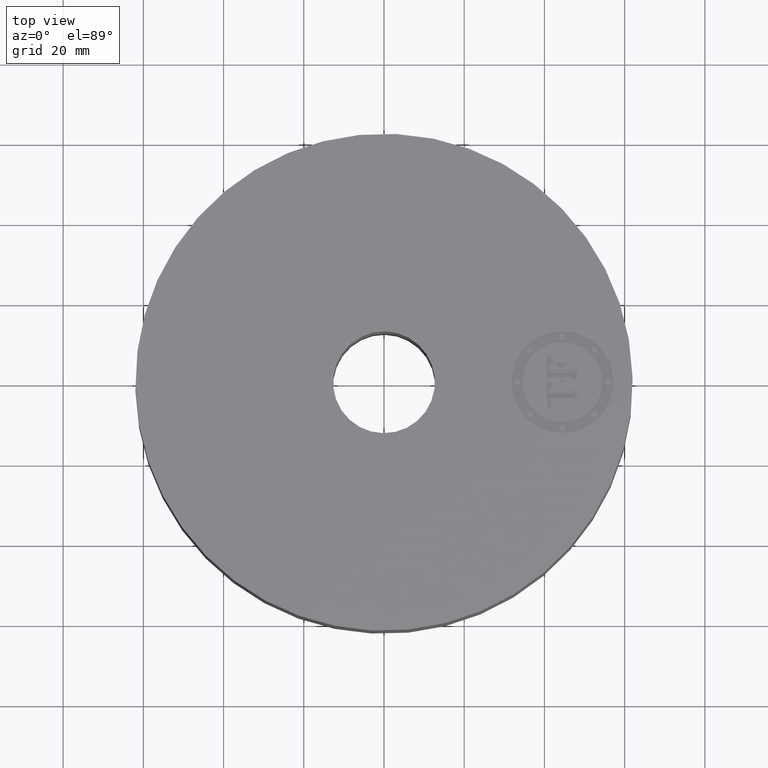
[diagram: clean part render]
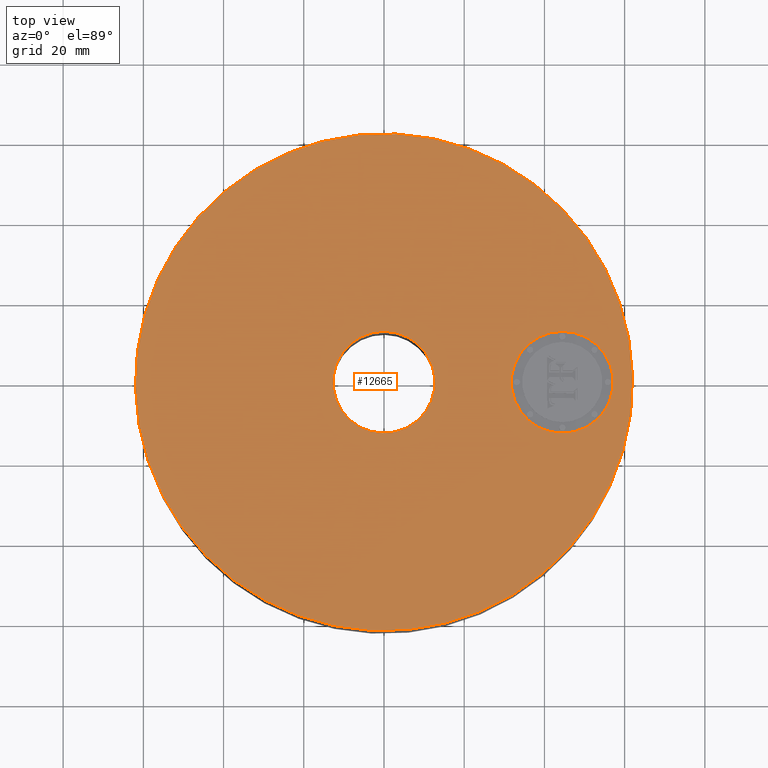
[diagram: same view with one face highlighted and labeled with its STEP entity id]
A machine part, top view. The second image highlights one B-rep face of the part: STEP entity #12665.
In plain terms, the highlighted planar face has unit normal (0, 0, -1).
Its self-contained STEP definition (entity closure, byte-faithful):
#3245=AXIS2_PLACEMENT_3D('Circle Axis2P3D',#3243,#3244,$) ;
#3264=AXIS2_PLACEMENT_3D('Circle Axis2P3D',#3262,#3263,$) ;
#3736=AXIS2_PLACEMENT_3D('Circle Axis2P3D',#3734,#3735,$) ;
#3762=AXIS2_PLACEMENT_3D('Circle Axis2P3D',#3760,#3761,$) ;
#12637=AXIS2_PLACEMENT_3D('Plane Axis2P3D',#12634,#12635,#12636) ;
#12649=AXIS2_PLACEMENT_3D('Circle Axis2P3D',#12647,#12648,$) ;
#12658=AXIS2_PLACEMENT_3D('Circle Axis2P3D',#12656,#12657,$) ;
#3240=CARTESIAN_POINT('Vertex',(-1.1697983142,-2.14130145102,1.75000000001)) ;
#3243=CARTESIAN_POINT('Axis2P3D Location',(0.,0.,1.75000000001)) ;
#3247=CARTESIAN_POINT('Vertex',(1.1697983142,2.14130145102,1.75000000001)) ;
#3262=CARTESIAN_POINT('Axis2P3D Location',(0.,0.,1.75000000001)) ;
#3734=CARTESIAN_POINT('Axis2P3D Location',(0.,0.,1.75000000001)) ;
#3738=CARTESIAN_POINT('Vertex',(0.239712769303,0.438791280947,1.75000000001)) ;
#3740=CARTESIAN_POINT('Vertex',(-0.239712769303,-0.438791280947,1.75000000001)) ;
#3760=CARTESIAN_POINT('Axis2P3D Location',(0.,0.,1.75000000001)) ;
#12634=CARTESIAN_POINT('Axis2P3D Location',(0.,0.500000000002,1.75000000001)) ;
#12647=CARTESIAN_POINT('Axis2P3D Location',(1.75000000001,0.,1.75000000001)) ;
#12651=CARTESIAN_POINT('Vertex',(1.75000000001,-0.499999995002,1.75000000001)) ;
#12653=CARTESIAN_POINT('Vertex',(1.75000000001,0.499999995002,1.75000000001)) ;
#12656=CARTESIAN_POINT('Axis2P3D Location',(1.75000000001,0.,1.75000000001)) ;
#3244=DIRECTION('Axis2P3D Direction',(0.,0.,-0.0393700787402)) ;
#3263=DIRECTION('Axis2P3D Direction',(0.,0.,-0.0393700787402)) ;
#3735=DIRECTION('Axis2P3D Direction',(0.,0.,-0.0393700787402)) ;
#3761=DIRECTION('Axis2P3D Direction',(0.,0.,-0.0393700787402)) ;
#12635=DIRECTION('Axis2P3D Direction',(0.,0.,-0.0393700787402)) ;
#12636=DIRECTION('Axis2P3D XDirection',(0.0393700787402,0.,0.)) ;
#12648=DIRECTION('Axis2P3D Direction',(0.,0.,-0.0393700787402)) ;
#12657=DIRECTION('Axis2P3D Direction',(0.,0.,-0.0393700787402)) ;
#12640=ORIENTED_EDGE('',*,*,#3266,.F.) ;
#12641=ORIENTED_EDGE('',*,*,#3249,.F.) ;
#12644=ORIENTED_EDGE('',*,*,#3764,.T.) ;
#12645=ORIENTED_EDGE('',*,*,#3742,.T.) ;
#12662=ORIENTED_EDGE('',*,*,#12655,.F.) ;
#12663=ORIENTED_EDGE('',*,*,#12660,.F.) ;
#12646=FACE_BOUND('',#12643,.T.) ;
#12664=FACE_BOUND('',#12661,.T.) ;
#12665=ADVANCED_FACE('PartBody',(#12642,#12646,#12664),#12638,.F.) ;
#3246=CIRCLE('generated circle',#3245,2.44000000001) ;
#3265=CIRCLE('generated circle',#3264,2.44000000001) ;
#3737=CIRCLE('generated circle',#3736,0.500000000002) ;
#3763=CIRCLE('generated circle',#3762,0.500000000002) ;
#12650=CIRCLE('generated circle',#12649,0.499999995002) ;
#12659=CIRCLE('generated circle',#12658,0.499999995002) ;
#3249=EDGE_CURVE('',#3241,#3248,#3246,.T.) ;
#3266=EDGE_CURVE('',#3248,#3241,#3265,.T.) ;
#3742=EDGE_CURVE('',#3739,#3741,#3737,.T.) ;
#3764=EDGE_CURVE('',#3741,#3739,#3763,.T.) ;
#12655=EDGE_CURVE('',#12652,#12654,#12650,.F.) ;
#12660=EDGE_CURVE('',#12654,#12652,#12659,.F.) ;
#12639=EDGE_LOOP('',(#12640,#12641)) ;
#12643=EDGE_LOOP('',(#12644,#12645)) ;
#12661=EDGE_LOOP('',(#12662,#12663)) ;
#12642=FACE_OUTER_BOUND('',#12639,.T.) ;
#12638=PLANE('',#12637) ;
#3241=VERTEX_POINT('',#3240) ;
#3248=VERTEX_POINT('',#3247) ;
#3739=VERTEX_POINT('',#3738) ;
#3741=VERTEX_POINT('',#3740) ;
#12652=VERTEX_POINT('',#12651) ;
#12654=VERTEX_POINT('',#12653) ;